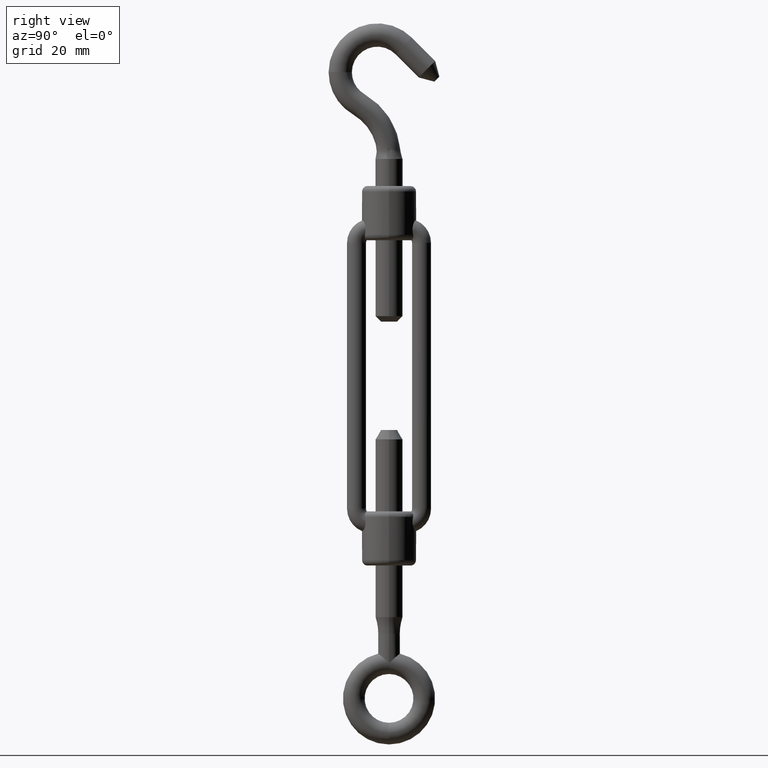
[diagram: clean part render]
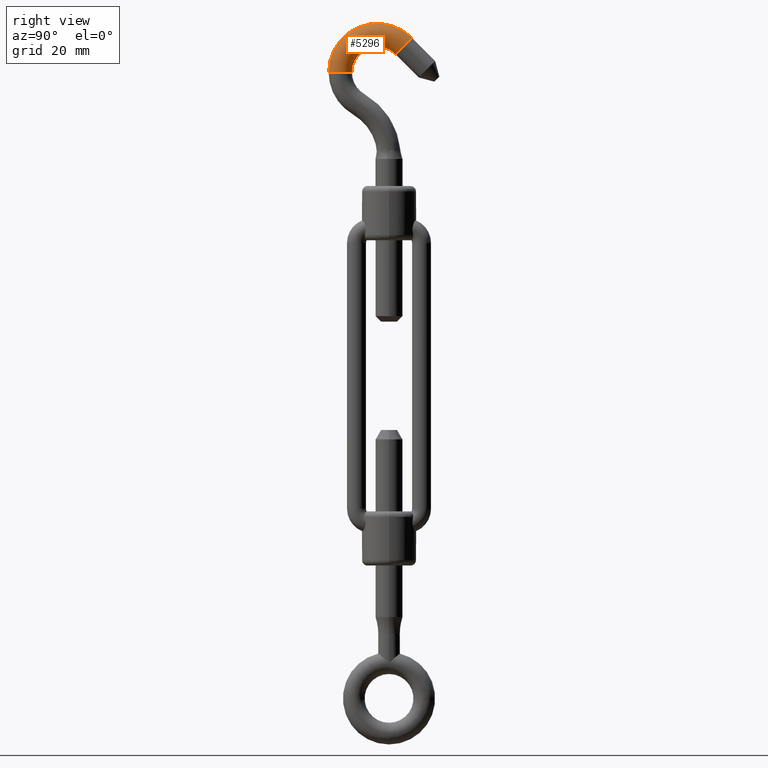
[diagram: same view with one face highlighted and labeled with its STEP entity id]
A machine part, right view. The second image highlights one B-rep face of the part: STEP entity #5296.
In plain terms, the highlighted toroidal blend (fillet) surface has major radius 6.85 mm and minor (blend) radius 2.15 mm.
Its self-contained STEP definition (entity closure, byte-faithful):
#675 = EDGE_CURVE ( 'NONE', #793, #16590, #6141, .T. ) ;
#793 = VERTEX_POINT ( 'NONE', #5603 ) ;
#1010 = DIRECTION ( 'NONE',  ( 0.0000000000000000000, 0.0000000000000000000, -1.000000000000000000 ) ) ;
#1855 = TOROIDAL_SURFACE ( 'NONE', #7834, 6.850000000000001400, 2.150000000000000400 ) ;
#2426 = CARTESIAN_POINT ( 'NONE',  ( 0.0000000000000000000, -9.000000000000000000, 0.0000000000000000000 ) ) ;
#3785 = CARTESIAN_POINT ( 'NONE',  ( -3.323401871576802300, -5.676598128423251000, 0.0000000000000000000 ) ) ;
#4204 = AXIS2_PLACEMENT_3D ( 'NONE', #7517, #14028, #10684 ) ;
#5048 = CIRCLE ( 'NONE', #14178, 2.150000000000000400 ) ;
#5185 = DIRECTION ( 'NONE',  ( 0.0000000000000000000, -1.000000000000000000, 0.0000000000000000000 ) ) ;
#5296 = ADVANCED_FACE ( 'NONE', ( #11270 ), #1855, .T. ) ;
#5603 = CARTESIAN_POINT ( 'NONE',  ( 4.700000000000001100, -9.000000000000000000, -2.632990618166810200E-016 ) ) ;
#6141 = CIRCLE ( 'NONE', #8706, 2.150000000000000400 ) ;
#6589 = AXIS2_PLACEMENT_3D ( 'NONE', #2426, #14389, #11421 ) ;
#6974 = CARTESIAN_POINT ( 'NONE',  ( -6.363961030678987100, -2.636038969321125200, 2.632990618166809700E-016 ) ) ;
#7280 = DIRECTION ( 'NONE',  ( 0.0000000000000000000, 0.0000000000000000000, 1.000000000000000000 ) ) ;
#7517 = CARTESIAN_POINT ( 'NONE',  ( 0.0000000000000000000, -9.000000000000000000, -2.632990618166809700E-016 ) ) ;
#7604 = VERTEX_POINT ( 'NONE', #3785 ) ;
#7834 = AXIS2_PLACEMENT_3D ( 'NONE', #11945, #7280, #18065 ) ;
#8444 = EDGE_CURVE ( 'NONE', #793, #7604, #17063, .T. ) ;
#8706 = AXIS2_PLACEMENT_3D ( 'NONE', #11370, #5185, #14397 ) ;
#8987 = EDGE_CURVE ( 'NONE', #16590, #10338, #10503, .T. ) ;
#9669 = EDGE_CURVE ( 'NONE', #7604, #10338, #5048, .T. ) ;
#10338 = VERTEX_POINT ( 'NONE', #6974 ) ;
#10503 = CIRCLE ( 'NONE', #6589, 9.000000000000001800 ) ;
#10684 = DIRECTION ( 'NONE',  ( 1.000000000000000000, 0.0000000000000000000, 0.0000000000000000000 ) ) ;
#11270 = FACE_OUTER_BOUND ( 'NONE', #18083, .T. ) ;
#11370 = CARTESIAN_POINT ( 'NONE',  ( 6.850000000000001400, -9.000000000000000000, 0.0000000000000000000 ) ) ;
#11421 = DIRECTION ( 'NONE',  ( 1.000000000000000000, 0.0000000000000000000, 0.0000000000000000000 ) ) ;
#11577 = DIRECTION ( 'NONE',  ( 0.7071067811865408000, 0.7071067811865542300, 0.0000000000000000000 ) ) ;
#11945 = CARTESIAN_POINT ( 'NONE',  ( 0.0000000000000000000, -9.000000000000000000, 0.0000000000000000000 ) ) ;
#12368 = ORIENTED_EDGE ( 'NONE', *, *, #8444, .T. ) ;
#13062 = ORIENTED_EDGE ( 'NONE', *, *, #9669, .T. ) ;
#13518 = ORIENTED_EDGE ( 'NONE', *, *, #8987, .F. ) ;
#14028 = DIRECTION ( 'NONE',  ( 0.0000000000000000000, 0.0000000000000000000, 1.000000000000000000 ) ) ;
#14178 = AXIS2_PLACEMENT_3D ( 'NONE', #17496, #11577, #1010 ) ;
#14389 = DIRECTION ( 'NONE',  ( 0.0000000000000000000, 0.0000000000000000000, 1.000000000000000000 ) ) ;
#14397 = DIRECTION ( 'NONE',  ( 0.0000000000000000000, 0.0000000000000000000, -1.000000000000000000 ) ) ;
#15827 = ORIENTED_EDGE ( 'NONE', *, *, #675, .F. ) ;
#16590 = VERTEX_POINT ( 'NONE', #16791 ) ;
#16791 = CARTESIAN_POINT ( 'NONE',  ( 9.000000000000001800, -9.000000000000000000, 0.0000000000000000000 ) ) ;
#17063 = CIRCLE ( 'NONE', #4204, 4.700000000000001100 ) ;
#17496 = CARTESIAN_POINT ( 'NONE',  ( -4.843681451127894300, -4.156318548872188300, 0.0000000000000000000 ) ) ;
#18065 = DIRECTION ( 'NONE',  ( 1.000000000000000000, 0.0000000000000000000, 0.0000000000000000000 ) ) ;
#18083 = EDGE_LOOP ( 'NONE', ( #13518, #15827, #12368, #13062 ) ) ;